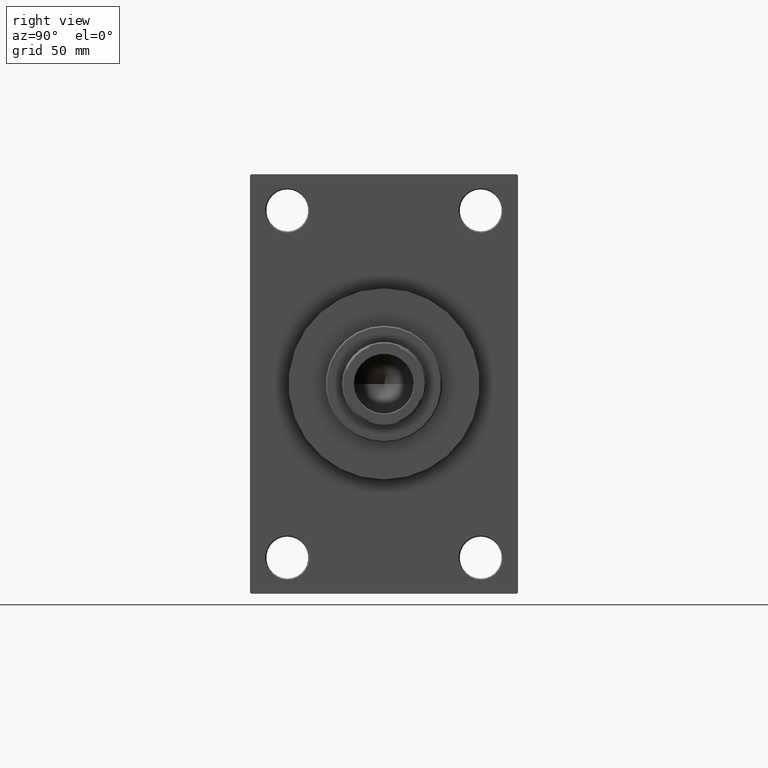
[diagram: clean part render]
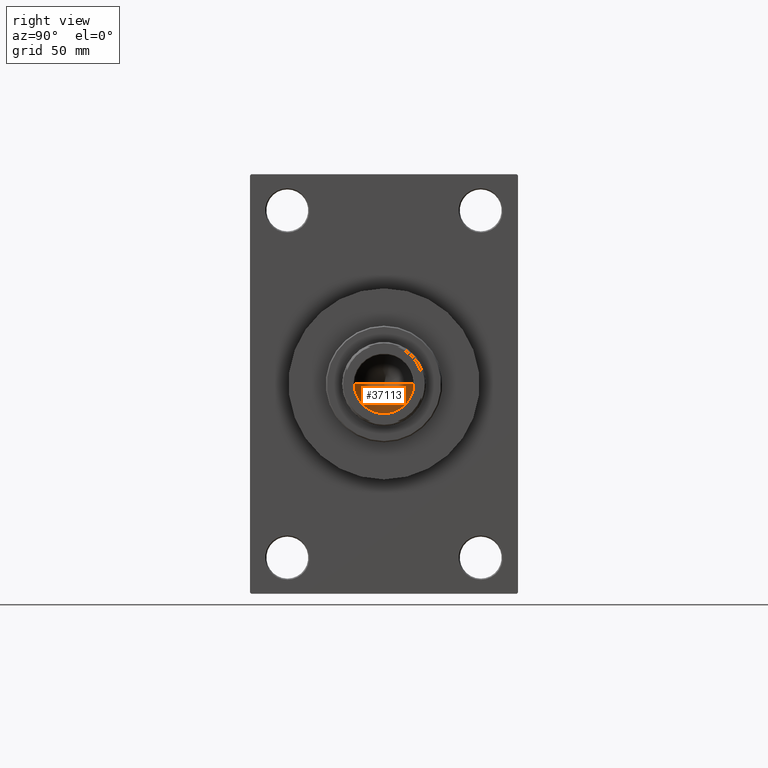
[diagram: same view with one face highlighted and labeled with its STEP entity id]
A machine part, right view. The second image highlights one B-rep face of the part: STEP entity #37113.
In plain terms, the highlighted conical surface has half-angle 59 deg.
Its self-contained STEP definition (entity closure, byte-faithful):
#5627 = EDGE_CURVE ( 'NONE', #43764, #41350, #23037, .T. ) ;
#7382 = CARTESIAN_POINT ( 'NONE',  ( -12.74999999999998934, 1.561424668912873928E-15, 121.0000000000000142 ) ) ;
#8033 = FACE_OUTER_BOUND ( 'NONE', #41869, .T. ) ;
#8867 = EDGE_CURVE ( 'NONE', #26095, #41350, #39151, .T. ) ;
#11949 = EDGE_CURVE ( 'NONE', #43764, #26095, #22261, .T. ) ;
#11970 = CARTESIAN_POINT ( 'NONE',  ( -12.74999999999998934, 1.561424668912873928E-15, 121.0000000000000142 ) ) ;
#12797 = CARTESIAN_POINT ( 'NONE',  ( 0.000000000000000000, 0.000000000000000000, 121.0000000000000142 ) ) ;
#14227 = DIRECTION ( 'NONE',  ( -0.000000000000000000, -0.000000000000000000, 1.000000000000000000 ) ) ;
#16151 = VECTOR ( 'NONE', #17921, 1000.000000000000000 ) ;
#16444 = ORIENTED_EDGE ( 'NONE', *, *, #11949, .T. ) ;
#17921 = DIRECTION ( 'NONE',  ( 0.8571673007021117785, 0.000000000000000000, 0.5150380749100550437 ) ) ;
#18145 = CARTESIAN_POINT ( 'NONE',  ( 12.74999999999998934, 0.000000000000000000, 121.0000000000000142 ) ) ;
#19107 = AXIS2_PLACEMENT_3D ( 'NONE', #44333, #14227, #44101 ) ;
#22261 = LINE ( 'NONE', #36720, #16151 ) ;
#23005 = ORIENTED_EDGE ( 'NONE', *, *, #8867, .T. ) ;
#23037 = LINE ( 'NONE', #7382, #46751 ) ;
#23738 = AXIS2_PLACEMENT_3D ( 'NONE', #12797, #41300, #37677 ) ;
#26095 = VERTEX_POINT ( 'NONE', #18145 ) ;
#35152 = CARTESIAN_POINT ( 'NONE',  ( -1.410643066818227497E-14, 0.000000000000000000, 113.3390271073986071 ) ) ;
#36603 = ORIENTED_EDGE ( 'NONE', *, *, #5627, .F. ) ;
#36720 = CARTESIAN_POINT ( 'NONE',  ( 12.74999999999998934, 0.000000000000000000, 121.0000000000000142 ) ) ;
#37113 = ADVANCED_FACE ( 'NONE', ( #8033 ), #44518, .F. ) ;
#37677 = DIRECTION ( 'NONE',  ( 1.000000000000000000, 0.000000000000000000, 0.000000000000000000 ) ) ;
#39151 = CIRCLE ( 'NONE', #19107, 12.74999999999998934 ) ;
#41300 = DIRECTION ( 'NONE',  ( -0.000000000000000000, -0.000000000000000000, 1.000000000000000000 ) ) ;
#41350 = VERTEX_POINT ( 'NONE', #11970 ) ;
#41869 = EDGE_LOOP ( 'NONE', ( #36603, #16444, #23005 ) ) ;
#43764 = VERTEX_POINT ( 'NONE', #35152 ) ;
#44101 = DIRECTION ( 'NONE',  ( 1.000000000000000000, 0.000000000000000000, 0.000000000000000000 ) ) ;
#44333 = CARTESIAN_POINT ( 'NONE',  ( 0.000000000000000000, 0.000000000000000000, 121.0000000000000142 ) ) ;
#44499 = DIRECTION ( 'NONE',  ( -0.8571673007021117785, 1.049727191138617956E-16, 0.5150380749100550437 ) ) ;
#44518 = CONICAL_SURFACE ( 'NONE', #23738, 12.74999999999998934, 1.029744258676653423 ) ;
#46751 = VECTOR ( 'NONE', #44499, 1000.000000000000000 ) ;